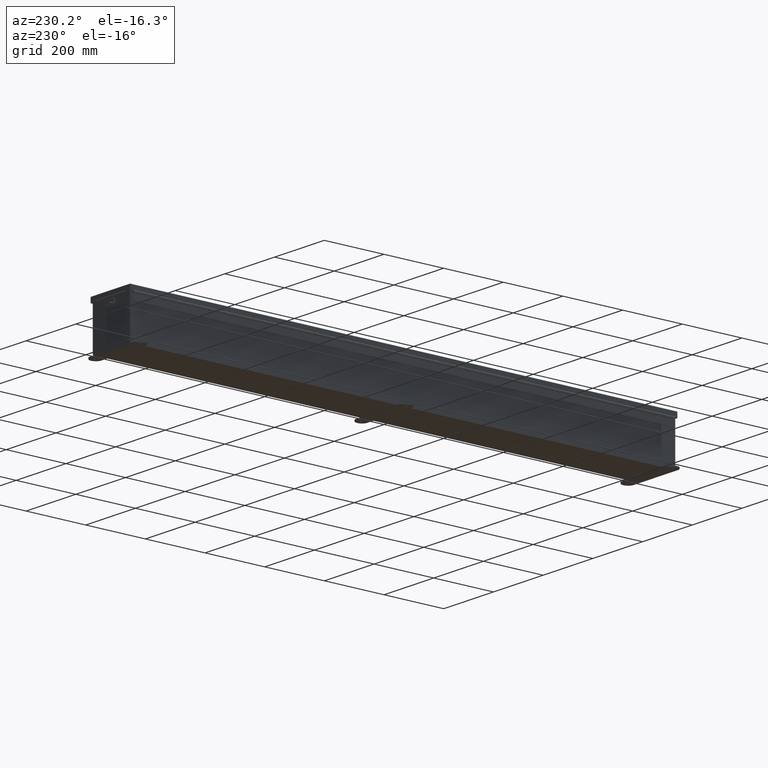
[diagram: clean part render]
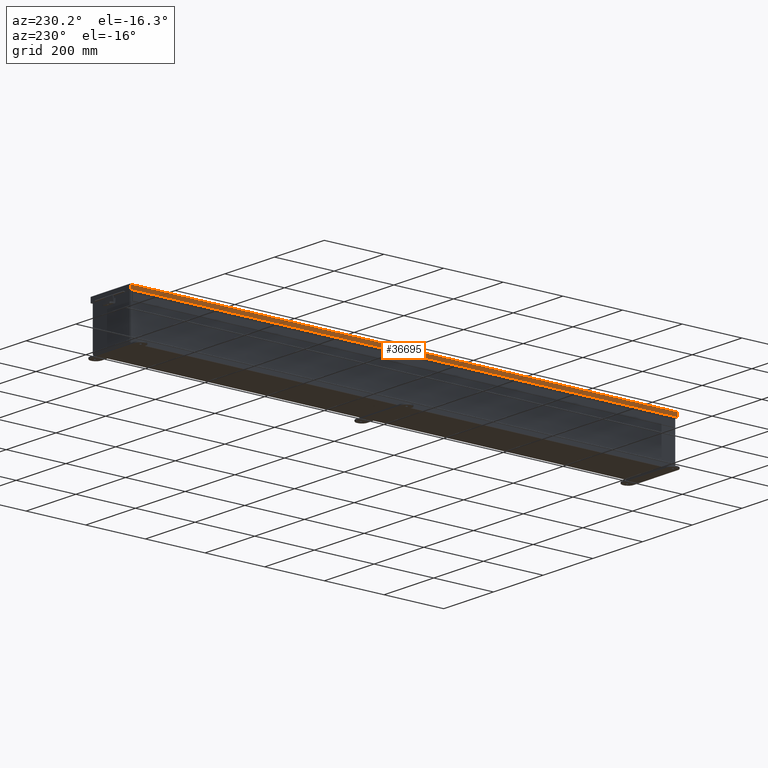
[diagram: same view with one face highlighted and labeled with its STEP entity id]
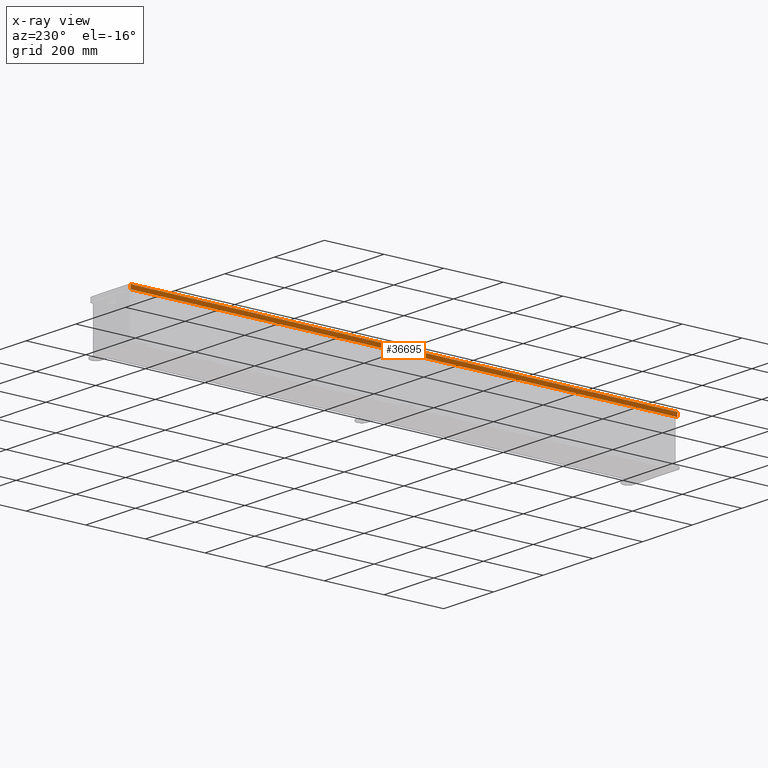
[diagram: x-ray of the same camera — body ghosted, the highlighted face saturated]
A machine part, auxiliary view. The second image highlights one B-rep face of the part: STEP entity #36695.
The next image is the same camera in x-ray: the body ghosted, the highlighted face saturated — about 0% of this face is hidden behind the body in this view.
In plain terms, the highlighted planar face has unit normal (1, -0, 0).
Its self-contained STEP definition (entity closure, byte-faithful):
#1341 = AXIS2_PLACEMENT_3D ( 'NONE', #44268, #13407, #40553 ) ;
#1768 = PLANE ( 'NONE',  #1341 ) ;
#3418 = EDGE_LOOP ( 'NONE', ( #20573, #22517, #16851, #34351 ) ) ;
#4383 = VECTOR ( 'NONE', #33554, 39.37007874015748100 ) ;
#4986 = CARTESIAN_POINT ( 'NONE',  ( 3.156250000000004000, -36.07447893218814300, 0.5502999999999999000 ) ) ;
#5435 = VERTEX_POINT ( 'NONE', #38065 ) ;
#6474 = CARTESIAN_POINT ( 'NONE',  ( 3.156250000000001800, 36.07447893218812100, -1.311287036958846300E-014 ) ) ;
#9342 = VECTOR ( 'NONE', #41321, 39.37007874015748100 ) ;
#10810 = EDGE_CURVE ( 'NONE', #38668, #5435, #21324, .T. ) ;
#13010 = LINE ( 'NONE', #49781, #42709 ) ;
#13407 = DIRECTION ( 'NONE',  ( -1.000000000000000000, -7.117262570622869600E-028, 3.971430846686188400E-015 ) ) ;
#14169 = CARTESIAN_POINT ( 'NONE',  ( 3.156250000000001800, -36.07447893218814300, -1.092739197465705300E-015 ) ) ;
#16851 = ORIENTED_EDGE ( 'NONE', *, *, #19075, .T. ) ;
#16901 = DIRECTION ( 'NONE',  ( -7.113811080656185800E-028, -1.000000000000000000, -2.266701878930884100E-017 ) ) ;
#18935 = EDGE_CURVE ( 'NONE', #49621, #40123, #19119, .T. ) ;
#19075 = EDGE_CURVE ( 'NONE', #5435, #40123, #13010, .T. ) ;
#19119 = LINE ( 'NONE', #14169, #9342 ) ;
#19402 = EDGE_CURVE ( 'NONE', #38668, #49621, #48779, .T. ) ;
#20573 = ORIENTED_EDGE ( 'NONE', *, *, #19402, .F. ) ;
#21324 = LINE ( 'NONE', #6474, #4383 ) ;
#22517 = ORIENTED_EDGE ( 'NONE', *, *, #10810, .T. ) ;
#27289 = CARTESIAN_POINT ( 'NONE',  ( 3.156250000000001800, -36.07447893218815000, 0.01300000000000010700 ) ) ;
#28190 = VECTOR ( 'NONE', #16901, 39.37007874015748100 ) ;
#29803 = CARTESIAN_POINT ( 'NONE',  ( 3.156250000000001800, 36.07447893218812100, 0.01300000000000120000 ) ) ;
#30479 = DIRECTION ( 'NONE',  ( -7.113082760768099300E-028, -1.000000000000000000, -4.614836295542919100E-029 ) ) ;
#33554 = DIRECTION ( 'NONE',  ( 3.971430846686188400E-015, 4.659209721461601000E-029, 1.000000000000000000 ) ) ;
#34351 = ORIENTED_EDGE ( 'NONE', *, *, #18935, .F. ) ;
#36695 = ADVANCED_FACE ( 'NONE', ( #43506 ), #1768, .F. ) ;
#38065 = CARTESIAN_POINT ( 'NONE',  ( 3.156250000000004000, 36.07447893218812100, 0.5502999999999999000 ) ) ;
#38668 = VERTEX_POINT ( 'NONE', #29803 ) ;
#40123 = VERTEX_POINT ( 'NONE', #4986 ) ;
#40553 = DIRECTION ( 'NONE',  ( 3.971430846686188400E-015, 4.659209721461601000E-029, 1.000000000000000000 ) ) ;
#41321 = DIRECTION ( 'NONE',  ( 3.971430846686188400E-015, 4.659209721461601000E-029, 1.000000000000000000 ) ) ;
#42709 = VECTOR ( 'NONE', #30479, 39.37007874015748100 ) ;
#43506 = FACE_OUTER_BOUND ( 'NONE', #3418, .T. ) ;
#43991 = CARTESIAN_POINT ( 'NONE',  ( 3.156250000000001800, -36.15625000000000700, 0.01299999999999901400 ) ) ;
#44268 = CARTESIAN_POINT ( 'NONE',  ( 3.156250000000001800, -1.067128122525102800E-018, -1.202013117212275700E-014 ) ) ;
#48779 = LINE ( 'NONE', #43991, #28190 ) ;
#49621 = VERTEX_POINT ( 'NONE', #27289 ) ;
#49781 = CARTESIAN_POINT ( 'NONE',  ( 3.156250000000004000, 3.201384367575308500E-018, 0.5502999999999999000 ) ) ;